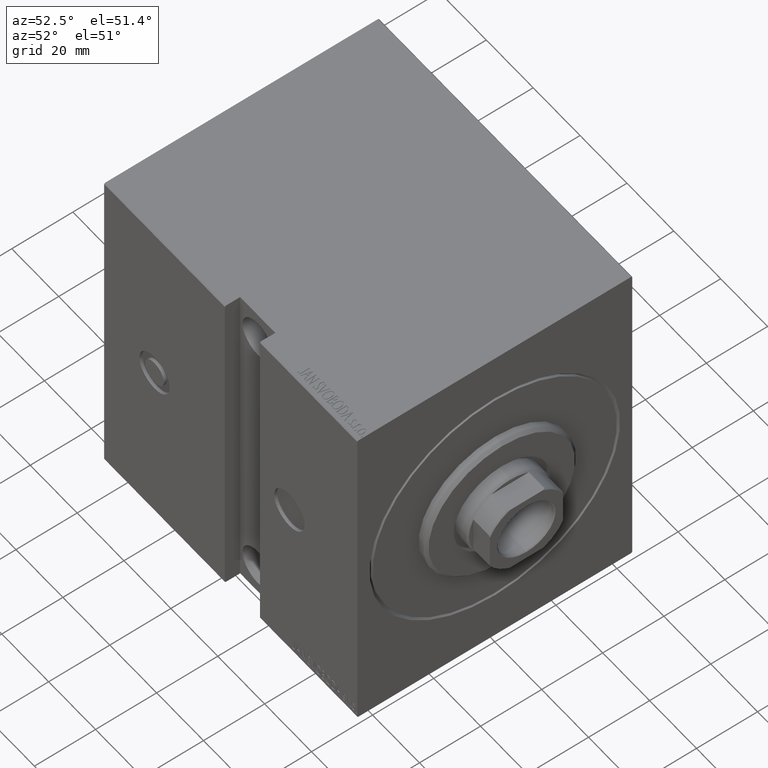
[diagram: clean part render]
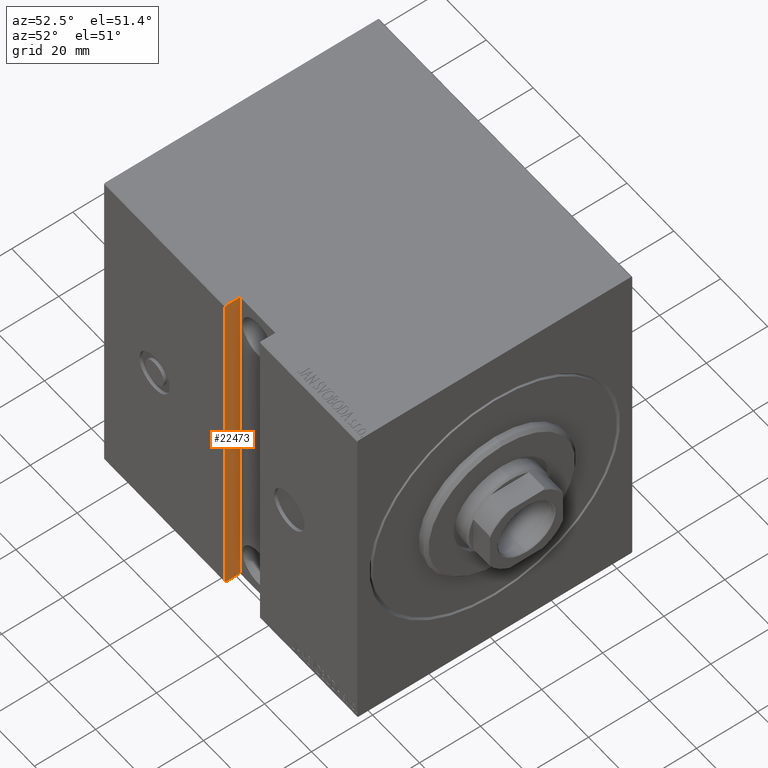
[diagram: same view with one face highlighted and labeled with its STEP entity id]
A machine part, auxiliary view. The second image highlights one B-rep face of the part: STEP entity #22473.
In plain terms, the highlighted planar face has unit normal (-1, 0, -0).
Its self-contained STEP definition (entity closure, byte-faithful):
#413 = ORIENTED_EDGE ( 'NONE', *, *, #35813, .F. ) ;
#2102 = LINE ( 'NONE', #7734, #37411 ) ;
#3460 = DIRECTION ( 'NONE',  ( 1.000000000000000000, 0.000000000000000000, -1.206764157201257291E-16 ) ) ;
#3520 = EDGE_LOOP ( 'NONE', ( #41376, #26664, #413, #17466, #10691, #26523 ) ) ;
#4553 = CARTESIAN_POINT ( 'NONE',  ( 56.50000000000001421, 40.00000000000002132, -57.50000000000000711 ) ) ;
#5547 = DIRECTION ( 'NONE',  ( -0.000000000000000000, 1.000000000000000000, -0.000000000000000000 ) ) ;
#5589 = DIRECTION ( 'NONE',  ( -1.206764157201257291E-16, -0.000000000000000000, -1.000000000000000000 ) ) ;
#7173 = CARTESIAN_POINT ( 'NONE',  ( 56.50000000000001421, 44.70000000000001705, 57.49999999999997868 ) ) ;
#7179 = CARTESIAN_POINT ( 'NONE',  ( 56.50000000000000000, 45.00000000000001421, -57.20000000000004547 ) ) ;
#7734 = CARTESIAN_POINT ( 'NONE',  ( 56.50000000000001421, 44.70000000000001705, 57.50000000000001421 ) ) ;
#8872 = DIRECTION ( 'NONE',  ( -0.000000000000000000, 1.000000000000000000, -0.000000000000000000 ) ) ;
#9061 = FACE_OUTER_BOUND ( 'NONE', #3520, .T. ) ;
#9523 = LINE ( 'NONE', #18558, #24330 ) ;
#10691 = ORIENTED_EDGE ( 'NONE', *, *, #39564, .T. ) ;
#11191 = VERTEX_POINT ( 'NONE', #34125 ) ;
#11314 = VERTEX_POINT ( 'NONE', #7173 ) ;
#11498 = VECTOR ( 'NONE', #13428, 1000.000000000000114 ) ;
#12090 = EDGE_CURVE ( 'NONE', #22831, #25463, #23566, .T. ) ;
#13428 = DIRECTION ( 'NONE',  ( -8.533111188498778777E-17, -0.7071067811865474617, -0.7071067811865474617 ) ) ;
#13500 = VERTEX_POINT ( 'NONE', #4553 ) ;
#15236 = CARTESIAN_POINT ( 'NONE',  ( 56.50000000000001421, 40.00000000000001421, 57.49999999999997868 ) ) ;
#17239 = CARTESIAN_POINT ( 'NONE',  ( 56.50000000000000000, 40.00000000000001421, -57.50000000000000711 ) ) ;
#17255 = EDGE_CURVE ( 'NONE', #11314, #18424, #2102, .T. ) ;
#17466 = ORIENTED_EDGE ( 'NONE', *, *, #38286, .F. ) ;
#17786 = CARTESIAN_POINT ( 'NONE',  ( 56.50000000000000000, 44.70000000000004547, -57.50000000000000711 ) ) ;
#18164 = VECTOR ( 'NONE', #5589, 1000.000000000000000 ) ;
#18275 = DIRECTION ( 'NONE',  ( -8.533111188498877384E-17, 0.7071067811865393571, -0.7071067811865556774 ) ) ;
#18424 = VERTEX_POINT ( 'NONE', #40822 ) ;
#18507 = DIRECTION ( 'NONE',  ( -1.206764157201257291E-16, -0.000000000000000000, -1.000000000000000000 ) ) ;
#18558 = CARTESIAN_POINT ( 'NONE',  ( 56.50000000000000000, 40.00000000000001421, -57.50000000000000711 ) ) ;
#21140 = LINE ( 'NONE', #27789, #36709 ) ;
#22473 = ADVANCED_FACE ( 'NONE', ( #9061 ), #35319, .F. ) ;
#22831 = VERTEX_POINT ( 'NONE', #39749 ) ;
#23566 = LINE ( 'NONE', #7179, #11498 ) ;
#24330 = VECTOR ( 'NONE', #8872, 1000.000000000000000 ) ;
#24363 = CARTESIAN_POINT ( 'NONE',  ( 56.50000000000000000, 40.00000000000001421, -57.50000000000000711 ) ) ;
#25168 = LINE ( 'NONE', #15236, #40906 ) ;
#25463 = VERTEX_POINT ( 'NONE', #17786 ) ;
#26523 = ORIENTED_EDGE ( 'NONE', *, *, #17255, .T. ) ;
#26525 = DIRECTION ( 'NONE',  ( -1.206764157201257291E-16, 0.000000000000000000, -1.000000000000000000 ) ) ;
#26664 = ORIENTED_EDGE ( 'NONE', *, *, #12090, .T. ) ;
#27789 = CARTESIAN_POINT ( 'NONE',  ( 56.50000000000000000, 45.00000000000001421, -57.50000000000000711 ) ) ;
#29973 = AXIS2_PLACEMENT_3D ( 'NONE', #17239, #3460, #26525 ) ;
#34125 = CARTESIAN_POINT ( 'NONE',  ( 56.50000000000001421, 40.00000000000001421, 57.49999999999997868 ) ) ;
#35319 = PLANE ( 'NONE',  #29973 ) ;
#35813 = EDGE_CURVE ( 'NONE', #13500, #25463, #9523, .T. ) ;
#36709 = VECTOR ( 'NONE', #18507, 1000.000000000000000 ) ;
#37058 = LINE ( 'NONE', #24363, #18164 ) ;
#37411 = VECTOR ( 'NONE', #18275, 1000.000000000000000 ) ;
#37457 = EDGE_CURVE ( 'NONE', #18424, #22831, #21140, .T. ) ;
#38286 = EDGE_CURVE ( 'NONE', #11191, #13500, #37058, .T. ) ;
#39564 = EDGE_CURVE ( 'NONE', #11191, #11314, #25168, .T. ) ;
#39749 = CARTESIAN_POINT ( 'NONE',  ( 56.50000000000000000, 45.00000000000001421, -57.20000000000004547 ) ) ;
#40822 = CARTESIAN_POINT ( 'NONE',  ( 56.50000000000001421, 45.00000000000001421, 57.20000000000001705 ) ) ;
#40906 = VECTOR ( 'NONE', #5547, 1000.000000000000000 ) ;
#41376 = ORIENTED_EDGE ( 'NONE', *, *, #37457, .T. ) ;